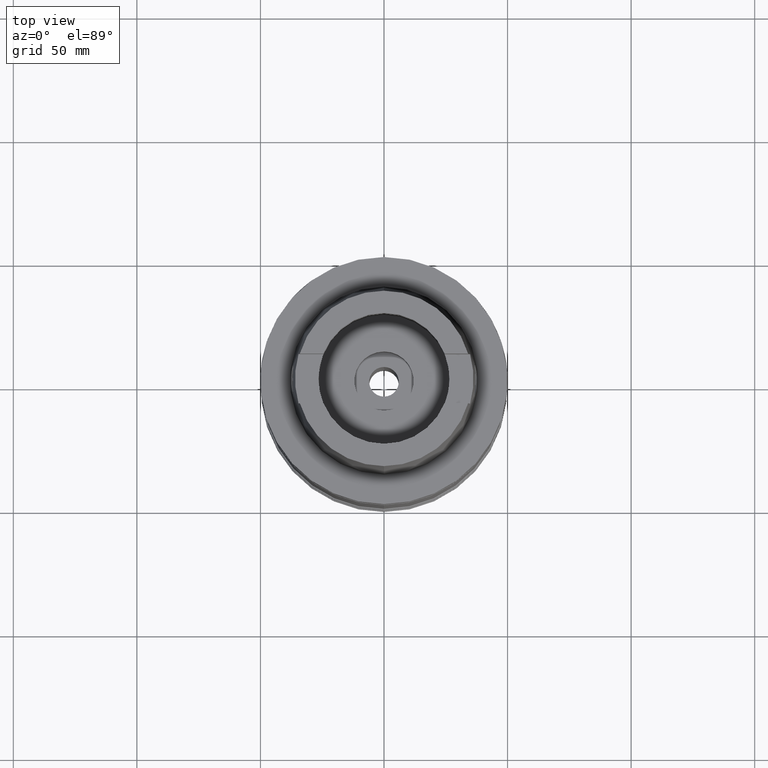
[diagram: clean part render]
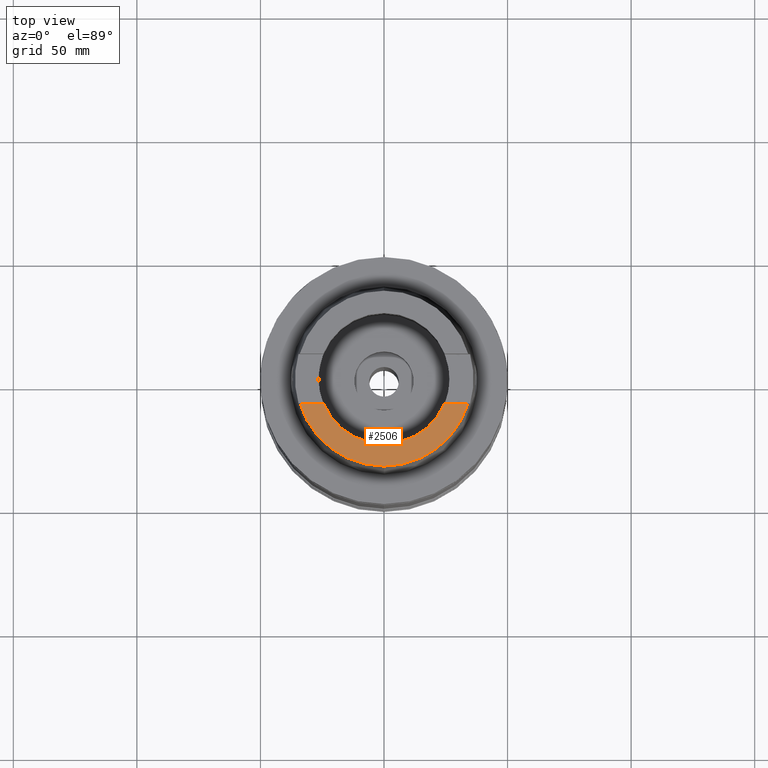
[diagram: same view with one face highlighted and labeled with its STEP entity id]
A machine part, top view. The second image highlights one B-rep face of the part: STEP entity #2506.
In plain terms, the highlighted planar face has unit normal (0, 0, 1).
Its self-contained STEP definition (entity closure, byte-faithful):
#113=CARTESIAN_POINT('',(0.E0,0.E0,5.E1));
#114=DIRECTION('',(0.E0,0.E0,1.E0));
#115=DIRECTION('',(-9.259134021805E-1,-3.777358490566E-1,0.E0));
#116=AXIS2_PLACEMENT_3D('',#113,#114,#115);
#121=CARTESIAN_POINT('',(0.E0,0.E0,5.E1));
#122=DIRECTION('',(0.E0,0.E0,1.E0));
#123=DIRECTION('',(0.E0,-1.E0,0.E0));
#124=AXIS2_PLACEMENT_3D('',#121,#122,#123);
#129=DIRECTION('',(1.E0,5.969234973915E-14,0.E0));
#130=VECTOR('',#129,9.522730988009E0);
#131=CARTESIAN_POINT('',(2.453670515778E1,-1.001E1,5.E1));
#132=LINE('',#131,#130);
#136=CARTESIAN_POINT('',(0.E0,0.E0,5.E1));
#137=DIRECTION('',(0.E0,0.E0,-1.E0));
#138=DIRECTION('',(9.594225291368E-1,-2.819723578379E-1,0.E0));
#139=AXIS2_PLACEMENT_3D('',#136,#137,#138);
#144=CARTESIAN_POINT('',(0.E0,0.E0,5.E1));
#145=DIRECTION('',(0.E0,0.E0,-1.E0));
#146=DIRECTION('',(0.E0,-1.E0,0.E0));
#147=AXIS2_PLACEMENT_3D('',#144,#145,#146);
#152=DIRECTION('',(-1.E0,5.838657958861E-14,0.E0));
#153=VECTOR('',#152,9.522730988009E0);
#154=CARTESIAN_POINT('',(-2.453670515778E1,-1.001E1,5.E1));
#155=LINE('',#154,#153);
#2106=CARTESIAN_POINT('',(-2.453670515778E1,-1.001E1,5.E1));
#2107=CARTESIAN_POINT('',(-3.405943614579E1,-1.001E1,5.E1));
#2108=VERTEX_POINT('',#2106);
#2109=VERTEX_POINT('',#2107);
#2110=CARTESIAN_POINT('',(0.E0,-2.65E1,5.E1));
#2111=VERTEX_POINT('',#2110);
#2112=CARTESIAN_POINT('',(2.453670515778E1,-1.001E1,5.E1));
#2113=VERTEX_POINT('',#2112);
#2114=CARTESIAN_POINT('',(3.405943614579E1,-1.001E1,5.E1));
#2115=VERTEX_POINT('',#2114);
#2116=CARTESIAN_POINT('',(0.E0,-3.549993366992E1,5.E1));
#2117=VERTEX_POINT('',#2116);
#2490=CARTESIAN_POINT('',(0.E0,0.E0,5.E1));
#2491=DIRECTION('',(0.E0,0.E0,1.E0));
#2492=DIRECTION('',(0.E0,1.E0,0.E0));
#2493=AXIS2_PLACEMENT_3D('',#2490,#2491,#2492);
#2494=PLANE('',#2493);
#2496=ORIENTED_EDGE('',*,*,#2495,.F.);
#2497=ORIENTED_EDGE('',*,*,#2445,.T.);
#2498=ORIENTED_EDGE('',*,*,#2461,.T.);
#2499=ORIENTED_EDGE('',*,*,#2480,.T.);
#2501=ORIENTED_EDGE('',*,*,#2500,.T.);
#2503=ORIENTED_EDGE('',*,*,#2502,.T.);
#2504=EDGE_LOOP('',(#2496,#2497,#2498,#2499,#2501,#2503));
#2505=FACE_OUTER_BOUND('',#2504,.F.);
#117=CIRCLE('',#116,2.65E1);
#125=CIRCLE('',#124,2.65E1);
#140=CIRCLE('',#139,3.549993366992E1);
#148=CIRCLE('',#147,3.549993366992E1);
#2445=EDGE_CURVE('',#2108,#2111,#117,.T.);
#2461=EDGE_CURVE('',#2111,#2113,#125,.T.);
#2480=EDGE_CURVE('',#2113,#2115,#132,.T.);
#2495=EDGE_CURVE('',#2108,#2109,#155,.T.);
#2500=EDGE_CURVE('',#2115,#2117,#140,.T.);
#2502=EDGE_CURVE('',#2117,#2109,#148,.T.);
#2506=ADVANCED_FACE('',(#2505),#2494,.T.);